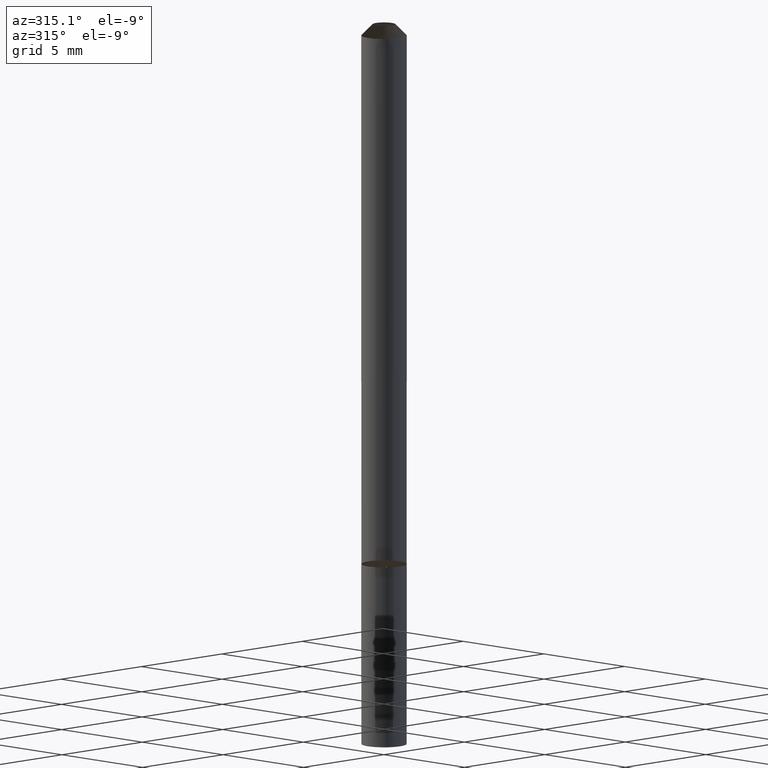
[diagram: clean part render]
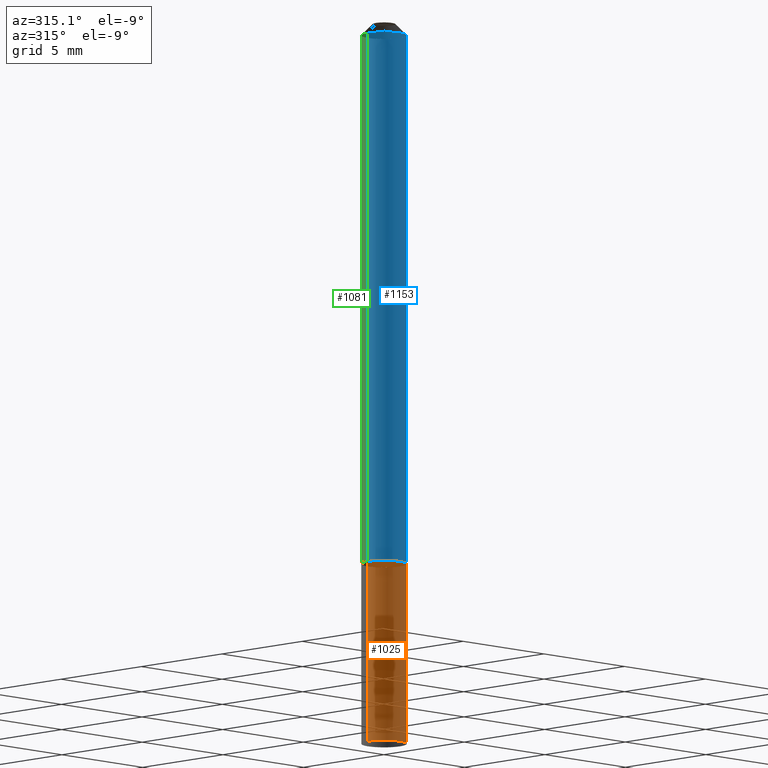
[diagram: same view with three faces highlighted in distinct colors, each labeled with its STEP entity id]
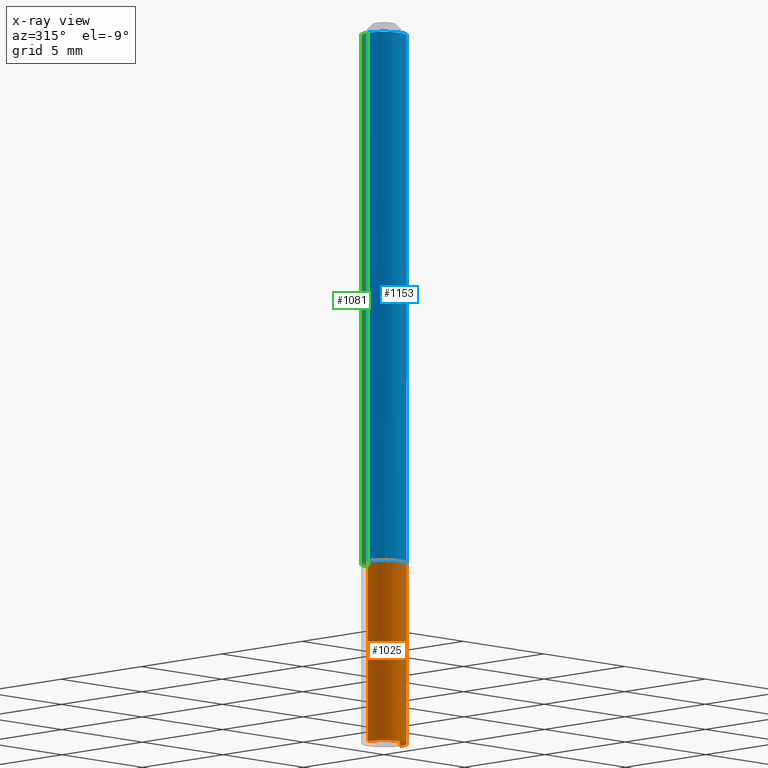
[diagram: x-ray of the same camera — body ghosted, the three highlighted faces saturated]
A machine part, auxiliary view with three faces highlighted in distinct colors.
The next image is the same camera in x-ray (body ghosted, the three faces saturated) — at least one of them is partly hidden behind the body in this view.
Their STEP definitions:

[orange] entity #1025 — the highlighted face is a freeform B-spline surface patch.
#105=CARTESIAN_POINT('',(0.0,-1.0,-8.0));
#316=CARTESIAN_POINT('',(1.0,0.0,-8.0));
#738=CARTESIAN_POINT('',(-1.0,0.0,-8.0));
#903=CARTESIAN_POINT('',(1.0,0.0,0.0));
#907=CARTESIAN_POINT('',(-1.0,0.0,0.0));
#909=CARTESIAN_POINT('',(-1.0,-1.0,-8.0));
#910=CARTESIAN_POINT('',(1.0,-1.0,-8.0));
#911=CARTESIAN_POINT('',(-1.0,-1.0,0.0));
#912=CARTESIAN_POINT('',(0.0,-1.0,0.0));
#913=CARTESIAN_POINT('',(1.0,-1.0,0.0));
#1006=(
BOUNDED_SURFACE()
B_SPLINE_SURFACE(1,2,(
(#738,#909,#105,#910,#316),
(#907,#911,#912,#913,#903)
), .UNSPECIFIED.,.F.,.F.,.F.)
B_SPLINE_SURFACE_WITH_KNOTS((2,2),(3,2,3),(
0.0,1.0),(
0.0,0.5,1.0), .UNSPECIFIED.)
GEOMETRIC_REPRESENTATION_ITEM()
RATIONAL_B_SPLINE_SURFACE(((1.0,0.707106781187,1.0,0.707106781187,1.0),
(1.0,0.707106781187,1.0,0.707106781187,1.0)
))
REPRESENTATION_ITEM('')
SURFACE()
);
#1007=(
BOUNDED_CURVE()
B_SPLINE_CURVE(2,(#316,#910,#105,#909,#738),.UNSPECIFIED.,.F.,.F.)
B_SPLINE_CURVE_WITH_KNOTS((3,2,3),
(0.0,0.5,1.0),.UNSPECIFIED.)
CURVE()
GEOMETRIC_REPRESENTATION_ITEM()
RATIONAL_B_SPLINE_CURVE((1.0,0.707106781187,1.0,0.707106781187,1.0))
REPRESENTATION_ITEM('')
);
#1008=(
BOUNDED_CURVE()
B_SPLINE_CURVE(1,(#738,#907),.UNSPECIFIED.,.F.,.F.)
B_SPLINE_CURVE_WITH_KNOTS((2,2),
(0.0,1.0),.UNSPECIFIED.)
CURVE()
GEOMETRIC_REPRESENTATION_ITEM()
RATIONAL_B_SPLINE_CURVE((1.0,1.0))
REPRESENTATION_ITEM('')
);
#1009=(
BOUNDED_CURVE()
B_SPLINE_CURVE(2,(#907,#911,#912,#913,#903),.UNSPECIFIED.,.F.,.F.)
B_SPLINE_CURVE_WITH_KNOTS((3,2,3),
(0.0,0.5,1.0),.UNSPECIFIED.)
CURVE()
GEOMETRIC_REPRESENTATION_ITEM()
RATIONAL_B_SPLINE_CURVE((1.0,0.707106781187,1.0,0.707106781187,1.0))
REPRESENTATION_ITEM('')
);
#1010=(
BOUNDED_CURVE()
B_SPLINE_CURVE(1,(#903,#316),.UNSPECIFIED.,.F.,.F.)
B_SPLINE_CURVE_WITH_KNOTS((2,2),
(0.0,1.0),.UNSPECIFIED.)
CURVE()
GEOMETRIC_REPRESENTATION_ITEM()
RATIONAL_B_SPLINE_CURVE((1.0,1.0))
REPRESENTATION_ITEM('')
);
#1011=VERTEX_POINT('',#316);
#1012=VERTEX_POINT('',#738);
#1013=VERTEX_POINT('',#903);
#1014=VERTEX_POINT('',#907);
#1015=EDGE_CURVE('',#1011,#1012,#1007,.T.);
#1016=EDGE_CURVE('',#1012,#1014,#1008,.T.);
#1017=EDGE_CURVE('',#1014,#1013,#1009,.T.);
#1018=EDGE_CURVE('',#1013,#1011,#1010,.T.);
#1019=ORIENTED_EDGE('',*,*,#1015,.T.);
#1020=ORIENTED_EDGE('',*,*,#1016,.T.);
#1021=ORIENTED_EDGE('',*,*,#1017,.T.);
#1022=ORIENTED_EDGE('',*,*,#1018,.T.);
#1023=EDGE_LOOP('',(#1019,#1020,#1021,#1022));
#1024=FACE_OUTER_BOUND('',#1023,.T.);
#1025=ADVANCED_FACE('',(#1024),#1006,.T.);

[blue] entity #1153 — the highlighted face is a freeform B-spline surface patch.
#903=CARTESIAN_POINT('',(1.0,0.0,0.0));
#907=CARTESIAN_POINT('',(-1.0,0.0,0.0));
#911=CARTESIAN_POINT('',(-1.0,-1.0,0.0));
#912=CARTESIAN_POINT('',(0.0,-1.0,0.0));
#913=CARTESIAN_POINT('',(1.0,-1.0,0.0));
#914=CARTESIAN_POINT('',(1.0,0.0,23.5));
#918=CARTESIAN_POINT('',(-1.0,0.0,23.5));
#925=CARTESIAN_POINT('',(-1.0,-1.0,23.5));
#926=CARTESIAN_POINT('',(0.0,-1.0,23.5));
#927=CARTESIAN_POINT('',(1.0,-1.0,23.5));
#1134=(
BOUNDED_SURFACE()
B_SPLINE_SURFACE(1,2,(
(#907,#911,#912,#913,#903),
(#918,#925,#926,#927,#914)
), .UNSPECIFIED.,.F.,.F.,.F.)
B_SPLINE_SURFACE_WITH_KNOTS((2,2),(3,2,3),(
0.0,1.0),(
0.0,0.5,1.0), .UNSPECIFIED.)
GEOMETRIC_REPRESENTATION_ITEM()
RATIONAL_B_SPLINE_SURFACE(((1.0,0.707106781187,1.0,0.707106781187,1.0),
(1.0,0.707106781187,1.0,0.707106781187,1.0)
))
REPRESENTATION_ITEM('')
SURFACE()
);
#1135=(
BOUNDED_CURVE()
B_SPLINE_CURVE(2,(#903,#913,#912,#911,#907),.UNSPECIFIED.,.F.,.F.)
B_SPLINE_CURVE_WITH_KNOTS((3,2,3),
(0.0,0.5,1.0),.UNSPECIFIED.)
CURVE()
GEOMETRIC_REPRESENTATION_ITEM()
RATIONAL_B_SPLINE_CURVE((1.0,0.707106781187,1.0,0.707106781187,1.0))
REPRESENTATION_ITEM('')
);
#1136=(
BOUNDED_CURVE()
B_SPLINE_CURVE(1,(#907,#918),.UNSPECIFIED.,.F.,.F.)
B_SPLINE_CURVE_WITH_KNOTS((2,2),
(0.0,1.0),.UNSPECIFIED.)
CURVE()
GEOMETRIC_REPRESENTATION_ITEM()
RATIONAL_B_SPLINE_CURVE((1.0,1.0))
REPRESENTATION_ITEM('')
);
#1137=(
BOUNDED_CURVE()
B_SPLINE_CURVE(2,(#918,#925,#926,#927,#914),.UNSPECIFIED.,.F.,.F.)
B_SPLINE_CURVE_WITH_KNOTS((3,2,3),
(0.0,0.5,1.0),.UNSPECIFIED.)
CURVE()
GEOMETRIC_REPRESENTATION_ITEM()
RATIONAL_B_SPLINE_CURVE((1.0,0.707106781187,1.0,0.707106781187,1.0))
REPRESENTATION_ITEM('')
);
#1138=(
BOUNDED_CURVE()
B_SPLINE_CURVE(1,(#914,#903),.UNSPECIFIED.,.F.,.F.)
B_SPLINE_CURVE_WITH_KNOTS((2,2),
(0.0,1.0),.UNSPECIFIED.)
CURVE()
GEOMETRIC_REPRESENTATION_ITEM()
RATIONAL_B_SPLINE_CURVE((1.0,1.0))
REPRESENTATION_ITEM('')
);
#1139=VERTEX_POINT('',#903);
#1140=VERTEX_POINT('',#907);
#1141=VERTEX_POINT('',#914);
#1142=VERTEX_POINT('',#918);
#1143=EDGE_CURVE('',#1139,#1140,#1135,.T.);
#1144=EDGE_CURVE('',#1140,#1142,#1136,.T.);
#1145=EDGE_CURVE('',#1142,#1141,#1137,.T.);
#1146=EDGE_CURVE('',#1141,#1139,#1138,.T.);
#1147=ORIENTED_EDGE('',*,*,#1143,.T.);
#1148=ORIENTED_EDGE('',*,*,#1144,.T.);
#1149=ORIENTED_EDGE('',*,*,#1145,.T.);
#1150=ORIENTED_EDGE('',*,*,#1146,.T.);
#1151=EDGE_LOOP('',(#1147,#1148,#1149,#1150));
#1152=FACE_OUTER_BOUND('',#1151,.T.);
#1153=ADVANCED_FACE('',(#1152),#1134,.T.);

[green] entity #1081 — the highlighted face is a freeform B-spline surface patch.
#903=CARTESIAN_POINT('',(1.0,0.0,0.0));
#904=CARTESIAN_POINT('',(1.0,1.0,0.0));
#905=CARTESIAN_POINT('',(0.0,1.0,0.0));
#906=CARTESIAN_POINT('',(-1.0,1.0,0.0));
#907=CARTESIAN_POINT('',(-1.0,0.0,0.0));
#914=CARTESIAN_POINT('',(1.0,0.0,23.5));
#915=CARTESIAN_POINT('',(1.0,1.0,23.5));
#916=CARTESIAN_POINT('',(0.0,1.0,23.5));
#917=CARTESIAN_POINT('',(-1.0,1.0,23.5));
#918=CARTESIAN_POINT('',(-1.0,0.0,23.5));
#1062=(
BOUNDED_SURFACE()
B_SPLINE_SURFACE(1,2,(
(#903,#904,#905,#906,#907),
(#914,#915,#916,#917,#918)
), .UNSPECIFIED.,.F.,.F.,.F.)
B_SPLINE_SURFACE_WITH_KNOTS((2,2),(3,2,3),(
0.0,1.0),(
0.0,0.5,1.0), .UNSPECIFIED.)
GEOMETRIC_REPRESENTATION_ITEM()
RATIONAL_B_SPLINE_SURFACE(((1.0,0.707106781187,1.0,0.707106781187,1.0),
(1.0,0.707106781187,1.0,0.707106781187,1.0)
))
REPRESENTATION_ITEM('')
SURFACE()
);
#1063=(
BOUNDED_CURVE()
B_SPLINE_CURVE(2,(#907,#906,#905,#904,#903),.UNSPECIFIED.,.F.,.F.)
B_SPLINE_CURVE_WITH_KNOTS((3,2,3),
(0.0,0.5,1.0),.UNSPECIFIED.)
CURVE()
GEOMETRIC_REPRESENTATION_ITEM()
RATIONAL_B_SPLINE_CURVE((1.0,0.707106781187,1.0,0.707106781187,1.0))
REPRESENTATION_ITEM('')
);
#1064=(
BOUNDED_CURVE()
B_SPLINE_CURVE(1,(#903,#914),.UNSPECIFIED.,.F.,.F.)
B_SPLINE_CURVE_WITH_KNOTS((2,2),
(0.0,1.0),.UNSPECIFIED.)
CURVE()
GEOMETRIC_REPRESENTATION_ITEM()
RATIONAL_B_SPLINE_CURVE((1.0,1.0))
REPRESENTATION_ITEM('')
);
#1065=(
BOUNDED_CURVE()
B_SPLINE_CURVE(2,(#914,#915,#916,#917,#918),.UNSPECIFIED.,.F.,.F.)
B_SPLINE_CURVE_WITH_KNOTS((3,2,3),
(0.0,0.5,1.0),.UNSPECIFIED.)
CURVE()
GEOMETRIC_REPRESENTATION_ITEM()
RATIONAL_B_SPLINE_CURVE((1.0,0.707106781187,1.0,0.707106781187,1.0))
REPRESENTATION_ITEM('')
);
#1066=(
BOUNDED_CURVE()
B_SPLINE_CURVE(1,(#918,#907),.UNSPECIFIED.,.F.,.F.)
B_SPLINE_CURVE_WITH_KNOTS((2,2),
(0.0,1.0),.UNSPECIFIED.)
CURVE()
GEOMETRIC_REPRESENTATION_ITEM()
RATIONAL_B_SPLINE_CURVE((1.0,1.0))
REPRESENTATION_ITEM('')
);
#1067=VERTEX_POINT('',#903);
#1068=VERTEX_POINT('',#907);
#1069=VERTEX_POINT('',#914);
#1070=VERTEX_POINT('',#918);
#1071=EDGE_CURVE('',#1068,#1067,#1063,.T.);
#1072=EDGE_CURVE('',#1067,#1069,#1064,.T.);
#1073=EDGE_CURVE('',#1069,#1070,#1065,.T.);
#1074=EDGE_CURVE('',#1070,#1068,#1066,.T.);
#1075=ORIENTED_EDGE('',*,*,#1071,.T.);
#1076=ORIENTED_EDGE('',*,*,#1072,.T.);
#1077=ORIENTED_EDGE('',*,*,#1073,.T.);
#1078=ORIENTED_EDGE('',*,*,#1074,.T.);
#1079=EDGE_LOOP('',(#1075,#1076,#1077,#1078));
#1080=FACE_OUTER_BOUND('',#1079,.T.);
#1081=ADVANCED_FACE('',(#1080),#1062,.T.);